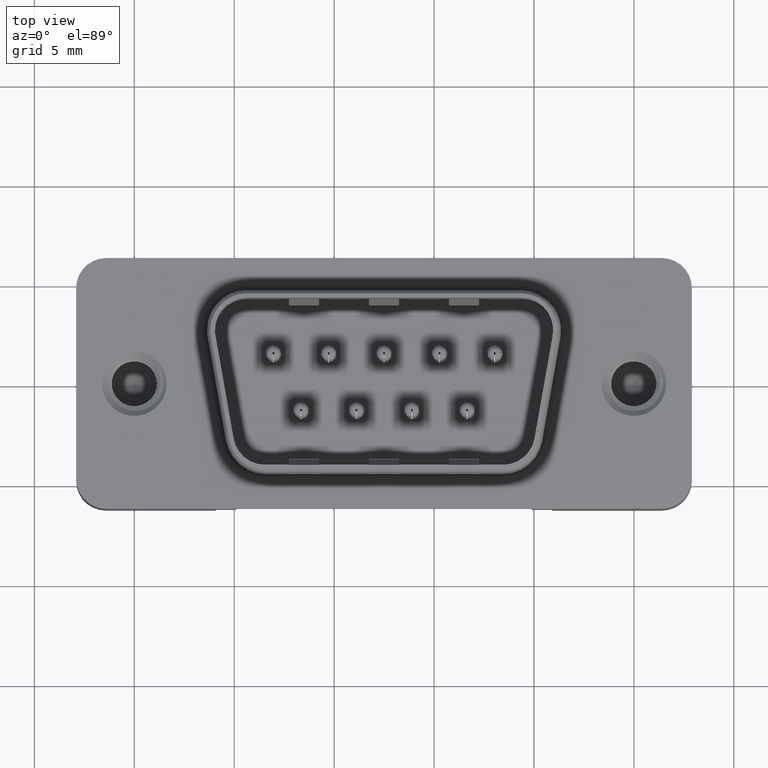
[diagram: clean part render]
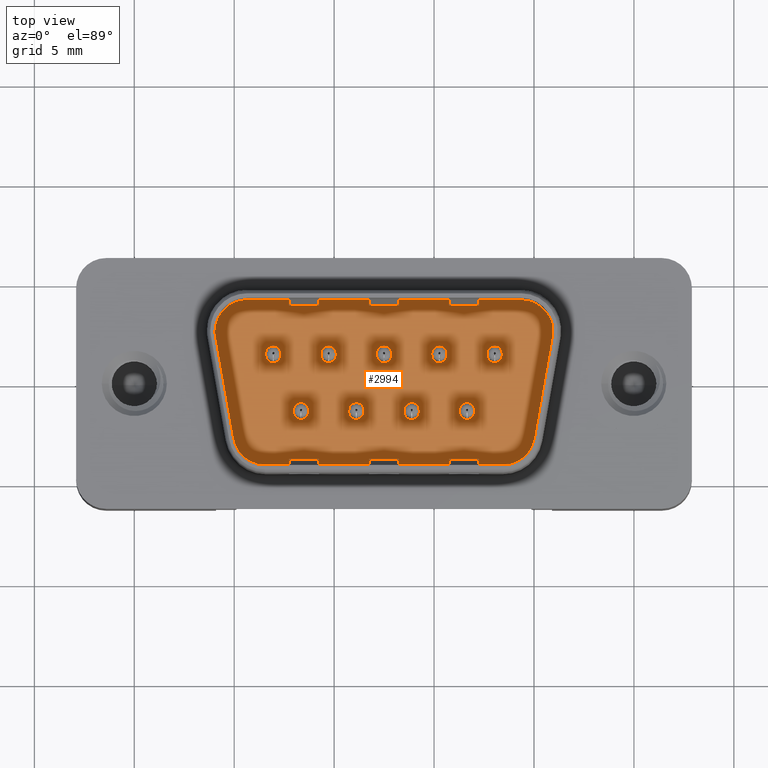
[diagram: same view with one face highlighted and labeled with its STEP entity id]
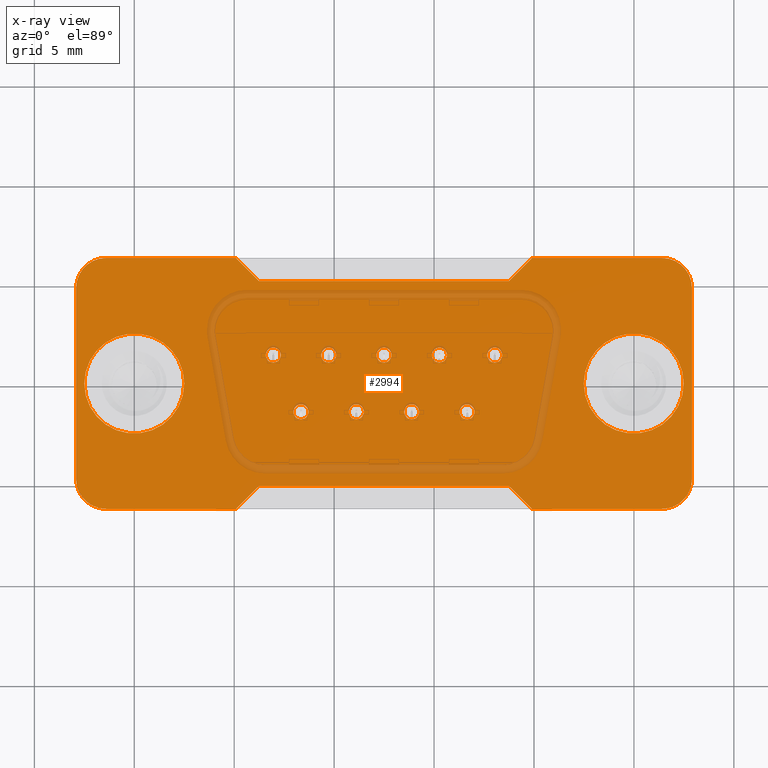
[diagram: x-ray of the same camera — body ghosted, the highlighted face saturated]
A machine part, top view. The second image highlights one B-rep face of the part: STEP entity #2994.
The next image is the same camera in x-ray: the body ghosted, the highlighted face saturated — about 7% of this face is hidden behind the body in this view.
In plain terms, the highlighted planar face has unit normal (0, 0, 1).
Its self-contained STEP definition (entity closure, byte-faithful):
#5 = PLANE ( 'NONE',  #10344 ) ;
#148 = DIRECTION ( 'NONE',  ( 1.000000000000000000, 0.0000000000000000000, -0.0000000000000000000 ) ) ;
#168 = ORIENTED_EDGE ( 'NONE', *, *, #9421, .F. ) ;
#275 = DIRECTION ( 'NONE',  ( -1.000000000000000000, 0.0000000000000000000, 0.0000000000000000000 ) ) ;
#351 = CARTESIAN_POINT ( 'NONE',  ( 10.73499999999999943, -1.419999999999999929, 0.0000000000000000000 ) ) ;
#415 = CIRCLE ( 'NONE', #10362, 0.3750000000000003331 ) ;
#418 = CIRCLE ( 'NONE', #12297, 0.3750000000000003331 ) ;
#434 = EDGE_CURVE ( 'NONE', #13246, #14756, #10138, .T. ) ;
#488 = EDGE_CURVE ( 'NONE', #6777, #7312, #2855, .T. ) ;
#495 = DIRECTION ( 'NONE',  ( 1.000000000000000000, 0.0000000000000000000, 0.0000000000000000000 ) ) ;
#518 = DIRECTION ( 'NONE',  ( 0.0000000000000000000, 0.0000000000000000000, 1.000000000000000000 ) ) ;
#575 = CARTESIAN_POINT ( 'NONE',  ( 6.579999999999999183, 1.419999999999999929, 0.0000000000000000000 ) ) ;
#605 = VERTEX_POINT ( 'NONE', #6147 ) ;
#609 = EDGE_CURVE ( 'NONE', #11572, #8027, #7967, .T. ) ;
#622 = CARTESIAN_POINT ( 'NONE',  ( -2.500000000000000000, 3.061616997868383141E-16, 0.0000000000000000000 ) ) ;
#788 = DIRECTION ( 'NONE',  ( -0.7071067811865515695, 0.7071067811865435759, -0.0000000000000000000 ) ) ;
#828 = ORIENTED_EDGE ( 'NONE', *, *, #13483, .F. ) ;
#856 = EDGE_CURVE ( 'NONE', #605, #14613, #1239, .T. ) ;
#915 = EDGE_CURVE ( 'NONE', #2534, #6081, #11781, .T. ) ;
#933 = AXIS2_PLACEMENT_3D ( 'NONE', #6535, #5460, #1958 ) ;
#1031 = CARTESIAN_POINT ( 'NONE',  ( 27.49000000000000199, 4.590588526603852614E-15, 0.0000000000000000000 ) ) ;
#1075 = CARTESIAN_POINT ( 'NONE',  ( 26.40000000000000213, 4.775000000000002132, 0.0000000000000000000 ) ) ;
#1113 = CARTESIAN_POINT ( 'NONE',  ( 13.88000000000000078, -1.419999999999999929, 0.0000000000000000000 ) ) ;
#1120 = CARTESIAN_POINT ( 'NONE',  ( 0.0000000000000000000, 0.0000000000000000000, 0.0000000000000000000 ) ) ;
#1137 = DIRECTION ( 'NONE',  ( 0.0000000000000000000, 0.0000000000000000000, 1.000000000000000000 ) ) ;
#1239 = LINE ( 'NONE', #8237, #3781 ) ;
#1394 = AXIS2_PLACEMENT_3D ( 'NONE', #10050, #7559, #495 ) ;
#1400 = VERTEX_POINT ( 'NONE', #2495 ) ;
#1464 = ORIENTED_EDGE ( 'NONE', *, *, #609, .T. ) ;
#1487 = VERTEX_POINT ( 'NONE', #10791 ) ;
#1489 = DIRECTION ( 'NONE',  ( -0.7071067811865439090, -0.7071067811865512365, -0.0000000000000000000 ) ) ;
#1508 = VERTEX_POINT ( 'NONE', #6462 ) ;
#1564 = DIRECTION ( 'NONE',  ( 1.000000000000000000, 0.0000000000000000000, 0.0000000000000000000 ) ) ;
#1580 = CARTESIAN_POINT ( 'NONE',  ( 26.40000000000000213, -4.774999999999996803, 0.0000000000000000000 ) ) ;
#1655 = VERTEX_POINT ( 'NONE', #8968 ) ;
#1710 = CARTESIAN_POINT ( 'NONE',  ( 8.339999999999999858, -1.419999999999999929, 0.0000000000000000000 ) ) ;
#1832 = LINE ( 'NONE', #12403, #2419 ) ;
#1865 = CARTESIAN_POINT ( 'NONE',  ( 8.339999999999999858, -1.419999999999999929, 0.0000000000000000000 ) ) ;
#1958 = DIRECTION ( 'NONE',  ( 1.000000000000000000, 0.0000000000000000000, 0.0000000000000000000 ) ) ;
#2010 = EDGE_CURVE ( 'NONE', #8549, #11572, #8726, .T. ) ;
#2014 = ORIENTED_EDGE ( 'NONE', *, *, #7823, .F. ) ;
#2130 = VECTOR ( 'NONE', #7850, 1000.000000000000000 ) ;
#2169 = CIRCLE ( 'NONE', #4600, 0.3750000000000003331 ) ;
#2215 = CARTESIAN_POINT ( 'NONE',  ( 2.500000000000000000, 0.0000000000000000000, 0.0000000000000000000 ) ) ;
#2272 = FACE_BOUND ( 'NONE', #14582, .T. ) ;
#2303 = CARTESIAN_POINT ( 'NONE',  ( 27.90000000000000568, 4.775000000000002132, 0.0000000000000000000 ) ) ;
#2327 = DIRECTION ( 'NONE',  ( 1.000000000000000000, 0.0000000000000000000, 0.0000000000000000000 ) ) ;
#2388 = EDGE_LOOP ( 'NONE', ( #3707, #14169 ) ) ;
#2419 = VECTOR ( 'NONE', #788, 999.9999999999998863 ) ;
#2429 = FACE_OUTER_BOUND ( 'NONE', #8048, .T. ) ;
#2495 = CARTESIAN_POINT ( 'NONE',  ( 9.349999999999999645, 1.419999999999999929, 0.0000000000000000000 ) ) ;
#2498 = CARTESIAN_POINT ( 'NONE',  ( 10.09999999999999964, 1.419999999999999929, 0.0000000000000000000 ) ) ;
#2499 = EDGE_CURVE ( 'NONE', #14756, #13246, #13775, .T. ) ;
#2534 = VERTEX_POINT ( 'NONE', #8228 ) ;
#2567 = VECTOR ( 'NONE', #10987, 1000.000000000000000 ) ;
#2629 = DIRECTION ( 'NONE',  ( 0.0000000000000000000, 0.0000000000000000000, 1.000000000000000000 ) ) ;
#2664 = VECTOR ( 'NONE', #3449, 1000.000000000000000 ) ;
#2696 = DIRECTION ( 'NONE',  ( 1.000000000000000000, 0.0000000000000000000, 0.0000000000000000000 ) ) ;
#2697 = VECTOR ( 'NONE', #7685, 1000.000000000000000 ) ;
#2705 = ORIENTED_EDGE ( 'NONE', *, *, #5954, .F. ) ;
#2740 = ORIENTED_EDGE ( 'NONE', *, *, #915, .T. ) ;
#2742 = DIRECTION ( 'NONE',  ( -1.000000000000000000, -0.0000000000000000000, -0.0000000000000000000 ) ) ;
#2828 = CARTESIAN_POINT ( 'NONE',  ( 5.090000000000007851, 6.275000000000000355, 0.0000000000000000000 ) ) ;
#2855 = CIRCLE ( 'NONE', #11355, 2.500000000000002220 ) ;
#2876 = CIRCLE ( 'NONE', #7989, 1.500000000000000000 ) ;
#2931 = ORIENTED_EDGE ( 'NONE', *, *, #7367, .T. ) ;
#2994 = ADVANCED_FACE ( 'NONE', ( #8065, #9510, #5710, #3566, #10490, #2272, #10332, #11544, #12692, #8219, #9275, #2429 ), #5, .T. ) ;
#3117 = CIRCLE ( 'NONE', #11595, 0.3750000000000003331 ) ;
#3129 = EDGE_LOOP ( 'NONE', ( #11853, #4384 ) ) ;
#3153 = DIRECTION ( 'NONE',  ( 0.0000000000000000000, 0.0000000000000000000, 1.000000000000000000 ) ) ;
#3350 = AXIS2_PLACEMENT_3D ( 'NONE', #13276, #1137, #13137 ) ;
#3425 = DIRECTION ( 'NONE',  ( 1.000000000000000000, 0.0000000000000000000, 0.0000000000000000000 ) ) ;
#3449 = DIRECTION ( 'NONE',  ( 1.000000000000000000, 1.386669445225263827E-16, 0.0000000000000000000 ) ) ;
#3453 = EDGE_CURVE ( 'NONE', #10222, #8610, #8313, .T. ) ;
#3457 = VERTEX_POINT ( 'NONE', #5914 ) ;
#3466 = CARTESIAN_POINT ( 'NONE',  ( 24.98999999999999844, 4.590588526603852614E-15, 0.0000000000000000000 ) ) ;
#3485 = DIRECTION ( 'NONE',  ( 0.0000000000000000000, 0.0000000000000000000, 1.000000000000000000 ) ) ;
#3549 = ORIENTED_EDGE ( 'NONE', *, *, #6547, .T. ) ;
#3566 = FACE_BOUND ( 'NONE', #12460, .T. ) ;
#3599 = AXIS2_PLACEMENT_3D ( 'NONE', #6294, #6206, #1564 ) ;
#3702 = ORIENTED_EDGE ( 'NONE', *, *, #9680, .T. ) ;
#3707 = ORIENTED_EDGE ( 'NONE', *, *, #11617, .F. ) ;
#3741 = ORIENTED_EDGE ( 'NONE', *, *, #5264, .F. ) ;
#3773 = VECTOR ( 'NONE', #4404, 1000.000000000000000 ) ;
#3781 = VECTOR ( 'NONE', #6718, 1000.000000000000000 ) ;
#3787 = CARTESIAN_POINT ( 'NONE',  ( 7.964999999999999858, -1.419999999999999929, 0.0000000000000000000 ) ) ;
#3801 = ORIENTED_EDGE ( 'NONE', *, *, #9308, .F. ) ;
#3852 = CARTESIAN_POINT ( 'NONE',  ( 24.98999999999999844, 4.590588526603852614E-15, 0.0000000000000000000 ) ) ;
#3907 = EDGE_LOOP ( 'NONE', ( #2705, #12449 ) ) ;
#3921 = DIRECTION ( 'NONE',  ( 0.0000000000000000000, 0.0000000000000000000, 1.000000000000000000 ) ) ;
#3933 = EDGE_CURVE ( 'NONE', #12515, #1487, #11425, .T. ) ;
#3982 = VERTEX_POINT ( 'NONE', #9597 ) ;
#3988 = DIRECTION ( 'NONE',  ( 1.000000000000000000, 0.0000000000000000000, 0.0000000000000000000 ) ) ;
#4082 = DIRECTION ( 'NONE',  ( 1.000000000000000000, 0.0000000000000000000, 0.0000000000000000000 ) ) ;
#4089 = VERTEX_POINT ( 'NONE', #8547 ) ;
#4255 = EDGE_CURVE ( 'NONE', #3982, #4796, #9203, .T. ) ;
#4262 = DIRECTION ( 'NONE',  ( 0.0000000000000000000, 0.0000000000000000000, 1.000000000000000000 ) ) ;
#4275 = DIRECTION ( 'NONE',  ( 0.0000000000000000000, 0.0000000000000000000, 1.000000000000000000 ) ) ;
#4384 = ORIENTED_EDGE ( 'NONE', *, *, #3453, .F. ) ;
#4404 = DIRECTION ( 'NONE',  ( -1.000000000000000000, -1.334402673828304958E-16, 0.0000000000000000000 ) ) ;
#4411 = VERTEX_POINT ( 'NONE', #2498 ) ;
#4436 = CARTESIAN_POINT ( 'NONE',  ( 5.090000000000007851, -6.274999999999998579, 0.0000000000000000000 ) ) ;
#4560 = DIRECTION ( 'NONE',  ( 0.0000000000000000000, 0.0000000000000000000, 1.000000000000000000 ) ) ;
#4600 = AXIS2_PLACEMENT_3D ( 'NONE', #14680, #4262, #8899 ) ;
#4649 = DIRECTION ( 'NONE',  ( 1.000000000000000000, 0.0000000000000000000, 0.0000000000000000000 ) ) ;
#4694 = DIRECTION ( 'NONE',  ( 0.0000000000000000000, 0.0000000000000000000, 1.000000000000000000 ) ) ;
#4725 = DIRECTION ( 'NONE',  ( 0.7071067811865433539, 0.7071067811865517916, 0.0000000000000000000 ) ) ;
#4755 = CARTESIAN_POINT ( 'NONE',  ( 9.724999999999999645, 1.419999999999999929, 0.0000000000000000000 ) ) ;
#4774 = DIRECTION ( 'NONE',  ( 0.0000000000000000000, 0.0000000000000000000, 1.000000000000000000 ) ) ;
#4782 = AXIS2_PLACEMENT_3D ( 'NONE', #6940, #7099, #11722 ) ;
#4796 = VERTEX_POINT ( 'NONE', #9260 ) ;
#4808 = AXIS2_PLACEMENT_3D ( 'NONE', #1580, #14363, #5093 ) ;
#5008 = CARTESIAN_POINT ( 'NONE',  ( 22.48999999999999488, 4.896750226390691273E-15, 0.0000000000000000000 ) ) ;
#5047 = AXIS2_PLACEMENT_3D ( 'NONE', #8708, #3921, #3988 ) ;
#5063 = CARTESIAN_POINT ( 'NONE',  ( -1.409999999999992371, -4.775000000000000355, 0.0000000000000000000 ) ) ;
#5071 = DIRECTION ( 'NONE',  ( 0.0000000000000000000, 0.0000000000000000000, 1.000000000000000000 ) ) ;
#5081 = AXIS2_PLACEMENT_3D ( 'NONE', #1710, #4560, #8123 ) ;
#5093 = DIRECTION ( 'NONE',  ( 1.000000000000000000, 0.0000000000000000000, 0.0000000000000000000 ) ) ;
#5264 = EDGE_CURVE ( 'NONE', #7312, #6777, #9623, .T. ) ;
#5409 = EDGE_CURVE ( 'NONE', #4796, #6118, #7496, .T. ) ;
#5430 = CARTESIAN_POINT ( 'NONE',  ( 9.724999999999999645, 1.419999999999999929, 0.0000000000000000000 ) ) ;
#5460 = DIRECTION ( 'NONE',  ( 0.0000000000000000000, 0.0000000000000000000, 1.000000000000000000 ) ) ;
#5496 = DIRECTION ( 'NONE',  ( 0.0000000000000000000, 0.0000000000000000000, 1.000000000000000000 ) ) ;
#5505 = AXIS2_PLACEMENT_3D ( 'NONE', #14202, #4774, #2327 ) ;
#5515 = CARTESIAN_POINT ( 'NONE',  ( 11.10999999999999943, -1.419999999999999929, 0.0000000000000000000 ) ) ;
#5517 = CIRCLE ( 'NONE', #3599, 0.3749999999999951150 ) ;
#5528 = CIRCLE ( 'NONE', #14272, 0.3750000000000003331 ) ;
#5543 = CIRCLE ( 'NONE', #933, 0.3750000000000003331 ) ;
#5546 = LINE ( 'NONE', #8881, #3773 ) ;
#5556 = CIRCLE ( 'NONE', #13516, 0.3750000000000003331 ) ;
#5710 = FACE_BOUND ( 'NONE', #3907, .T. ) ;
#5789 = CIRCLE ( 'NONE', #10155, 0.3750000000000003331 ) ;
#5914 = CARTESIAN_POINT ( 'NONE',  ( 16.27499999999999858, -1.419999999999999929, 0.0000000000000000000 ) ) ;
#5954 = EDGE_CURVE ( 'NONE', #4089, #3457, #11804, .T. ) ;
#6081 = VERTEX_POINT ( 'NONE', #8434 ) ;
#6118 = VERTEX_POINT ( 'NONE', #7589 ) ;
#6147 = CARTESIAN_POINT ( 'NONE',  ( 27.90000000000000568, -4.774999999999995914, 0.0000000000000000000 ) ) ;
#6206 = DIRECTION ( 'NONE',  ( 0.0000000000000000000, 0.0000000000000000000, 1.000000000000000000 ) ) ;
#6214 = DIRECTION ( 'NONE',  ( -1.000000000000000000, 1.334402673828313093E-16, 0.0000000000000000000 ) ) ;
#6270 = CARTESIAN_POINT ( 'NONE',  ( 13.50499999999999901, -1.419999999999999929, 0.0000000000000000000 ) ) ;
#6294 = CARTESIAN_POINT ( 'NONE',  ( 15.26499999999999879, 1.419999999999999929, 0.0000000000000000000 ) ) ;
#6397 = VERTEX_POINT ( 'NONE', #351 ) ;
#6422 = EDGE_LOOP ( 'NONE', ( #14740, #7530 ) ) ;
#6446 = CARTESIAN_POINT ( 'NONE',  ( 5.090000000000007851, 6.275000000000000355, 0.0000000000000000000 ) ) ;
#6462 = CARTESIAN_POINT ( 'NONE',  ( 17.66000000000000014, 1.419999999999999929, 0.0000000000000000000 ) ) ;
#6535 = CARTESIAN_POINT ( 'NONE',  ( 13.88000000000000078, -1.419999999999999929, 0.0000000000000000000 ) ) ;
#6547 = EDGE_CURVE ( 'NONE', #12585, #14925, #10505, .T. ) ;
#6573 = VERTEX_POINT ( 'NONE', #7094 ) ;
#6677 = EDGE_CURVE ( 'NONE', #8027, #9665, #13011, .T. ) ;
#6718 = DIRECTION ( 'NONE',  ( 0.0000000000000000000, 1.000000000000000000, 0.0000000000000000000 ) ) ;
#6777 = VERTEX_POINT ( 'NONE', #1031 ) ;
#6796 = DIRECTION ( 'NONE',  ( 0.0000000000000000000, 0.0000000000000000000, 1.000000000000000000 ) ) ;
#6926 = CARTESIAN_POINT ( 'NONE',  ( 15.26499999999999879, 1.419999999999999929, 0.0000000000000000000 ) ) ;
#6928 = ORIENTED_EDGE ( 'NONE', *, *, #12963, .F. ) ;
#6940 = CARTESIAN_POINT ( 'NONE',  ( 18.03500000000000014, 1.419999999999999929, 0.0000000000000000000 ) ) ;
#7094 = CARTESIAN_POINT ( 'NONE',  ( 8.714999999999999858, -1.419999999999999929, 0.0000000000000000000 ) ) ;
#7099 = DIRECTION ( 'NONE',  ( 0.0000000000000000000, 0.0000000000000000000, 1.000000000000000000 ) ) ;
#7122 = DIRECTION ( 'NONE',  ( 1.000000000000000000, 0.0000000000000000000, 0.0000000000000000000 ) ) ;
#7174 = LINE ( 'NONE', #11802, #12111 ) ;
#7188 = ORIENTED_EDGE ( 'NONE', *, *, #14920, .T. ) ;
#7250 = AXIS2_PLACEMENT_3D ( 'NONE', #1865, #3153, #4082 ) ;
#7260 = DIRECTION ( 'NONE',  ( 0.0000000000000000000, 0.0000000000000000000, 1.000000000000000000 ) ) ;
#7312 = VERTEX_POINT ( 'NONE', #5008 ) ;
#7367 = EDGE_CURVE ( 'NONE', #6118, #605, #9673, .T. ) ;
#7383 = VERTEX_POINT ( 'NONE', #3787 ) ;
#7477 = AXIS2_PLACEMENT_3D ( 'NONE', #12974, #15030, #11676 ) ;
#7496 = LINE ( 'NONE', #12130, #2567 ) ;
#7497 = EDGE_CURVE ( 'NONE', #10426, #11915, #5543, .T. ) ;
#7530 = ORIENTED_EDGE ( 'NONE', *, *, #7631, .F. ) ;
#7559 = DIRECTION ( 'NONE',  ( 0.0000000000000000000, 0.0000000000000000000, 1.000000000000000000 ) ) ;
#7589 = CARTESIAN_POINT ( 'NONE',  ( 26.40000000000000568, -6.274999999999997691, 0.0000000000000000000 ) ) ;
#7626 = ORIENTED_EDGE ( 'NONE', *, *, #6677, .T. ) ;
#7631 = EDGE_CURVE ( 'NONE', #11915, #10426, #415, .T. ) ;
#7640 = CARTESIAN_POINT ( 'NONE',  ( -2.909999999999992593, 4.775000000000000355, 0.0000000000000000000 ) ) ;
#7642 = VERTEX_POINT ( 'NONE', #9031 ) ;
#7672 = ORIENTED_EDGE ( 'NONE', *, *, #14346, .T. ) ;
#7685 = DIRECTION ( 'NONE',  ( 0.7071067811865517916, -0.7071067811865432429, 0.0000000000000000000 ) ) ;
#7735 = CIRCLE ( 'NONE', #3350, 2.500000000000000000 ) ;
#7814 = EDGE_CURVE ( 'NONE', #12404, #12434, #5517, .T. ) ;
#7823 = EDGE_CURVE ( 'NONE', #4411, #1400, #5556, .T. ) ;
#7845 = EDGE_LOOP ( 'NONE', ( #6928, #11431 ) ) ;
#7850 = DIRECTION ( 'NONE',  ( 1.000000000000000000, 2.668805347656626678E-16, -0.0000000000000000000 ) ) ;
#7876 = EDGE_LOOP ( 'NONE', ( #2014, #13809 ) ) ;
#7967 = CIRCLE ( 'NONE', #9899, 1.500000000000000222 ) ;
#7989 = AXIS2_PLACEMENT_3D ( 'NONE', #5063, #7260, #275 ) ;
#8027 = VERTEX_POINT ( 'NONE', #7640 ) ;
#8040 = CARTESIAN_POINT ( 'NONE',  ( 12.86999999999999922, 1.419999999999999929, 0.0000000000000000000 ) ) ;
#8048 = EDGE_LOOP ( 'NONE', ( #8704, #12282, #10707, #2740, #7188, #12487, #1464, #7626, #3702, #12214, #3549, #7672, #9318, #8775, #2931, #14629 ) ) ;
#8065 = FACE_BOUND ( 'NONE', #2388, .T. ) ;
#8123 = DIRECTION ( 'NONE',  ( 1.000000000000000000, 0.0000000000000000000, 0.0000000000000000000 ) ) ;
#8150 = CARTESIAN_POINT ( 'NONE',  ( 5.090000000000007851, -6.274999999999998579, 0.0000000000000000000 ) ) ;
#8202 = EDGE_LOOP ( 'NONE', ( #9983, #3741 ) ) ;
#8219 = FACE_BOUND ( 'NONE', #8202, .T. ) ;
#8228 = CARTESIAN_POINT ( 'NONE',  ( 18.74999999999997513, 5.124999999999999112, 0.0000000000000000000 ) ) ;
#8237 = CARTESIAN_POINT ( 'NONE',  ( 27.90000000000000568, -4.774999999999995914, 0.0000000000000000000 ) ) ;
#8313 = CIRCLE ( 'NONE', #14616, 2.500000000000000000 ) ;
#8384 = EDGE_CURVE ( 'NONE', #1400, #4411, #5528, .T. ) ;
#8419 = EDGE_LOOP ( 'NONE', ( #10358, #9740 ) ) ;
#8434 = CARTESIAN_POINT ( 'NONE',  ( 6.240000000000021529, 5.124999999999999112, 0.0000000000000000000 ) ) ;
#8487 = CARTESIAN_POINT ( 'NONE',  ( -2.909999999999992593, -4.775000000000000355, 0.0000000000000000000 ) ) ;
#8511 = EDGE_CURVE ( 'NONE', #14613, #10345, #13055, .T. ) ;
#8547 = CARTESIAN_POINT ( 'NONE',  ( 17.02499999999999858, -1.419999999999999929, 0.0000000000000000000 ) ) ;
#8549 = VERTEX_POINT ( 'NONE', #2828 ) ;
#8571 = EDGE_CURVE ( 'NONE', #6397, #9801, #8921, .T. ) ;
#8580 = EDGE_CURVE ( 'NONE', #12434, #12404, #12568, .T. ) ;
#8588 = EDGE_CURVE ( 'NONE', #7642, #12585, #11264, .T. ) ;
#8610 = VERTEX_POINT ( 'NONE', #2215 ) ;
#8704 = ORIENTED_EDGE ( 'NONE', *, *, #8511, .T. ) ;
#8708 = CARTESIAN_POINT ( 'NONE',  ( 6.954999999999999183, 1.419999999999999929, 0.0000000000000000000 ) ) ;
#8726 = LINE ( 'NONE', #6446, #11089 ) ;
#8737 = CARTESIAN_POINT ( 'NONE',  ( 14.89000000000000412, 1.419999999999999929, 0.0000000000000000000 ) ) ;
#8775 = ORIENTED_EDGE ( 'NONE', *, *, #5409, .T. ) ;
#8881 = CARTESIAN_POINT ( 'NONE',  ( 26.40000000000000568, 6.275000000000003908, 0.0000000000000000000 ) ) ;
#8899 = DIRECTION ( 'NONE',  ( 1.000000000000000000, 0.0000000000000000000, 0.0000000000000000000 ) ) ;
#8921 = CIRCLE ( 'NONE', #10860, 0.3750000000000003331 ) ;
#8968 = CARTESIAN_POINT ( 'NONE',  ( 18.41000000000000014, 1.419999999999999929, 0.0000000000000000000 ) ) ;
#9031 = CARTESIAN_POINT ( 'NONE',  ( -1.409999999999992149, -6.275000000000000355, 0.0000000000000000000 ) ) ;
#9160 = CARTESIAN_POINT ( 'NONE',  ( 12.49499999999999922, 1.419999999999999929, 0.0000000000000000000 ) ) ;
#9179 = EDGE_CURVE ( 'NONE', #8610, #10222, #7735, .T. ) ;
#9188 = EDGE_LOOP ( 'NONE', ( #9481, #10957 ) ) ;
#9203 = LINE ( 'NONE', #13848, #2697 ) ;
#9246 = AXIS2_PLACEMENT_3D ( 'NONE', #15020, #12663, #10668 ) ;
#9260 = CARTESIAN_POINT ( 'NONE',  ( 19.90000000000001990, -6.274999999999997691, 0.0000000000000000000 ) ) ;
#9275 = FACE_BOUND ( 'NONE', #3129, .T. ) ;
#9308 = EDGE_CURVE ( 'NONE', #6573, #7383, #9684, .T. ) ;
#9318 = ORIENTED_EDGE ( 'NONE', *, *, #4255, .T. ) ;
#9409 = DIRECTION ( 'NONE',  ( 1.000000000000000000, 0.0000000000000000000, 0.0000000000000000000 ) ) ;
#9421 = EDGE_CURVE ( 'NONE', #1487, #12515, #3117, .T. ) ;
#9481 = ORIENTED_EDGE ( 'NONE', *, *, #434, .F. ) ;
#9510 = FACE_BOUND ( 'NONE', #6422, .T. ) ;
#9530 = DIRECTION ( 'NONE',  ( -0.0000000000000000000, -1.000000000000000000, -0.0000000000000000000 ) ) ;
#9597 = CARTESIAN_POINT ( 'NONE',  ( 18.75000000000000711, -5.124999999999999112, 0.0000000000000000000 ) ) ;
#9623 = CIRCLE ( 'NONE', #14716, 2.500000000000002220 ) ;
#9626 = EDGE_CURVE ( 'NONE', #12138, #2534, #7174, .T. ) ;
#9665 = VERTEX_POINT ( 'NONE', #8487 ) ;
#9673 = CIRCLE ( 'NONE', #4808, 1.500000000000001332 ) ;
#9680 = EDGE_CURVE ( 'NONE', #9665, #7642, #2876, .T. ) ;
#9684 = CIRCLE ( 'NONE', #7250, 0.3750000000000003331 ) ;
#9707 = DIRECTION ( 'NONE',  ( 1.000000000000000000, 0.0000000000000000000, 0.0000000000000000000 ) ) ;
#9740 = ORIENTED_EDGE ( 'NONE', *, *, #7814, .F. ) ;
#9801 = VERTEX_POINT ( 'NONE', #11042 ) ;
#9810 = CARTESIAN_POINT ( 'NONE',  ( 26.40000000000000568, 6.275000000000003908, 0.0000000000000000000 ) ) ;
#9893 = CARTESIAN_POINT ( 'NONE',  ( 6.239999999999991331, -5.125000000000000888, 0.0000000000000000000 ) ) ;
#9899 = AXIS2_PLACEMENT_3D ( 'NONE', #10928, #518, #12480 ) ;
#9983 = ORIENTED_EDGE ( 'NONE', *, *, #488, .F. ) ;
#10050 = CARTESIAN_POINT ( 'NONE',  ( 26.40000000000000213, 4.775000000000002132, 0.0000000000000000000 ) ) ;
#10138 = CIRCLE ( 'NONE', #7477, 0.3750000000000003331 ) ;
#10144 = DIRECTION ( 'NONE',  ( 0.0000000000000000000, 0.0000000000000000000, 1.000000000000000000 ) ) ;
#10155 = AXIS2_PLACEMENT_3D ( 'NONE', #13996, #12493, #13651 ) ;
#10222 = VERTEX_POINT ( 'NONE', #622 ) ;
#10304 = CARTESIAN_POINT ( 'NONE',  ( 5.090000000000007851, -6.274999999999998579, 0.0000000000000000000 ) ) ;
#10332 = FACE_BOUND ( 'NONE', #8419, .T. ) ;
#10333 = EDGE_CURVE ( 'NONE', #3457, #4089, #2169, .T. ) ;
#10340 = CARTESIAN_POINT ( 'NONE',  ( 19.89999999999996660, 6.275000000000003020, 0.0000000000000000000 ) ) ;
#10344 = AXIS2_PLACEMENT_3D ( 'NONE', #1075, #3485, #148 ) ;
#10345 = VERTEX_POINT ( 'NONE', #9810 ) ;
#10358 = ORIENTED_EDGE ( 'NONE', *, *, #8580, .F. ) ;
#10362 = AXIS2_PLACEMENT_3D ( 'NONE', #1113, #12817, #13819 ) ;
#10370 = DIRECTION ( 'NONE',  ( 1.000000000000000000, 0.0000000000000000000, 0.0000000000000000000 ) ) ;
#10426 = VERTEX_POINT ( 'NONE', #12398 ) ;
#10490 = FACE_BOUND ( 'NONE', #7876, .T. ) ;
#10505 = LINE ( 'NONE', #8150, #14514 ) ;
#10582 = ORIENTED_EDGE ( 'NONE', *, *, #3933, .F. ) ;
#10668 = DIRECTION ( 'NONE',  ( 1.000000000000000000, 0.0000000000000000000, 0.0000000000000000000 ) ) ;
#10707 = ORIENTED_EDGE ( 'NONE', *, *, #9626, .T. ) ;
#10791 = CARTESIAN_POINT ( 'NONE',  ( 12.11999999999999922, 1.419999999999999929, 0.0000000000000000000 ) ) ;
#10860 = AXIS2_PLACEMENT_3D ( 'NONE', #13559, #6796, #3425 ) ;
#10891 = CARTESIAN_POINT ( 'NONE',  ( 6.240000000000021529, 5.124999999999999112, 0.0000000000000000000 ) ) ;
#10899 = EDGE_CURVE ( 'NONE', #10345, #12138, #5546, .T. ) ;
#10928 = CARTESIAN_POINT ( 'NONE',  ( -1.409999999999992371, 4.775000000000000355, 0.0000000000000000000 ) ) ;
#10957 = ORIENTED_EDGE ( 'NONE', *, *, #2499, .F. ) ;
#10987 = DIRECTION ( 'NONE',  ( 1.000000000000000000, 2.668805347656631116E-16, -0.0000000000000000000 ) ) ;
#11042 = CARTESIAN_POINT ( 'NONE',  ( 11.48500000000000121, -1.419999999999999929, 0.0000000000000000000 ) ) ;
#11083 = CIRCLE ( 'NONE', #4782, 0.3750000000000003331 ) ;
#11089 = VECTOR ( 'NONE', #6214, 1000.000000000000000 ) ;
#11264 = LINE ( 'NONE', #4436, #2130 ) ;
#11355 = AXIS2_PLACEMENT_3D ( 'NONE', #3466, #11910, #7122 ) ;
#11425 = CIRCLE ( 'NONE', #9246, 0.3750000000000003331 ) ;
#11431 = ORIENTED_EDGE ( 'NONE', *, *, #11723, .F. ) ;
#11544 = FACE_BOUND ( 'NONE', #7845, .T. ) ;
#11572 = VERTEX_POINT ( 'NONE', #13648 ) ;
#11582 = AXIS2_PLACEMENT_3D ( 'NONE', #6926, #5496, #4649 ) ;
#11595 = AXIS2_PLACEMENT_3D ( 'NONE', #9160, #13942, #10370 ) ;
#11617 = EDGE_CURVE ( 'NONE', #9801, #6397, #418, .T. ) ;
#11676 = DIRECTION ( 'NONE',  ( 1.000000000000000000, 0.0000000000000000000, 0.0000000000000000000 ) ) ;
#11722 = DIRECTION ( 'NONE',  ( 1.000000000000000000, 0.0000000000000000000, 0.0000000000000000000 ) ) ;
#11723 = EDGE_CURVE ( 'NONE', #1508, #1655, #11083, .T. ) ;
#11781 = LINE ( 'NONE', #10891, #13732 ) ;
#11802 = CARTESIAN_POINT ( 'NONE',  ( 18.74999999999997513, 5.124999999999999112, 0.0000000000000000000 ) ) ;
#11804 = CIRCLE ( 'NONE', #5505, 0.3750000000000003331 ) ;
#11853 = ORIENTED_EDGE ( 'NONE', *, *, #9179, .F. ) ;
#11910 = DIRECTION ( 'NONE',  ( 0.0000000000000000000, 0.0000000000000000000, 1.000000000000000000 ) ) ;
#11915 = VERTEX_POINT ( 'NONE', #6270 ) ;
#12031 = DIRECTION ( 'NONE',  ( 1.000000000000000000, 0.0000000000000000000, 0.0000000000000000000 ) ) ;
#12111 = VECTOR ( 'NONE', #1489, 999.9999999999998863 ) ;
#12130 = CARTESIAN_POINT ( 'NONE',  ( 26.40000000000000568, -6.274999999999995914, 0.0000000000000000000 ) ) ;
#12138 = VERTEX_POINT ( 'NONE', #10340 ) ;
#12214 = ORIENTED_EDGE ( 'NONE', *, *, #8588, .T. ) ;
#12282 = ORIENTED_EDGE ( 'NONE', *, *, #10899, .T. ) ;
#12297 = AXIS2_PLACEMENT_3D ( 'NONE', #5515, #10144, #14867 ) ;
#12398 = CARTESIAN_POINT ( 'NONE',  ( 14.25500000000000078, -1.419999999999999929, 0.0000000000000000000 ) ) ;
#12403 = CARTESIAN_POINT ( 'NONE',  ( 5.090000000000007851, 6.275000000000000355, 0.0000000000000000000 ) ) ;
#12404 = VERTEX_POINT ( 'NONE', #8737 ) ;
#12434 = VERTEX_POINT ( 'NONE', #13372 ) ;
#12449 = ORIENTED_EDGE ( 'NONE', *, *, #10333, .F. ) ;
#12460 = EDGE_LOOP ( 'NONE', ( #3801, #828 ) ) ;
#12480 = DIRECTION ( 'NONE',  ( 1.000000000000000000, 0.0000000000000000000, 0.0000000000000000000 ) ) ;
#12487 = ORIENTED_EDGE ( 'NONE', *, *, #2010, .T. ) ;
#12493 = DIRECTION ( 'NONE',  ( 0.0000000000000000000, 0.0000000000000000000, 1.000000000000000000 ) ) ;
#12515 = VERTEX_POINT ( 'NONE', #8040 ) ;
#12568 = CIRCLE ( 'NONE', #11582, 0.3749999999999951150 ) ;
#12585 = VERTEX_POINT ( 'NONE', #10304 ) ;
#12663 = DIRECTION ( 'NONE',  ( 0.0000000000000000000, 0.0000000000000000000, 1.000000000000000000 ) ) ;
#12692 = FACE_BOUND ( 'NONE', #9188, .T. ) ;
#12720 = LINE ( 'NONE', #13880, #2664 ) ;
#12811 = VECTOR ( 'NONE', #9530, 1000.000000000000000 ) ;
#12817 = DIRECTION ( 'NONE',  ( 0.0000000000000000000, 0.0000000000000000000, 1.000000000000000000 ) ) ;
#12963 = EDGE_CURVE ( 'NONE', #1655, #1508, #5789, .T. ) ;
#12974 = CARTESIAN_POINT ( 'NONE',  ( 6.954999999999999183, 1.419999999999999929, 0.0000000000000000000 ) ) ;
#13011 = LINE ( 'NONE', #13928, #12811 ) ;
#13055 = CIRCLE ( 'NONE', #1394, 1.500000000000001332 ) ;
#13080 = CIRCLE ( 'NONE', #5081, 0.3750000000000003331 ) ;
#13137 = DIRECTION ( 'NONE',  ( 1.000000000000000000, 0.0000000000000000000, 0.0000000000000000000 ) ) ;
#13246 = VERTEX_POINT ( 'NONE', #13620 ) ;
#13276 = CARTESIAN_POINT ( 'NONE',  ( 0.0000000000000000000, 0.0000000000000000000, 0.0000000000000000000 ) ) ;
#13372 = CARTESIAN_POINT ( 'NONE',  ( 15.63999999999999346, 1.419999999999999929, 0.0000000000000000000 ) ) ;
#13483 = EDGE_CURVE ( 'NONE', #7383, #6573, #13080, .T. ) ;
#13516 = AXIS2_PLACEMENT_3D ( 'NONE', #4755, #2629, #9707 ) ;
#13559 = CARTESIAN_POINT ( 'NONE',  ( 11.10999999999999943, -1.419999999999999929, 0.0000000000000000000 ) ) ;
#13620 = CARTESIAN_POINT ( 'NONE',  ( 7.330000000000000071, 1.419999999999999929, 0.0000000000000000000 ) ) ;
#13648 = CARTESIAN_POINT ( 'NONE',  ( -1.409999999999992593, 6.275000000000001243, 0.0000000000000000000 ) ) ;
#13651 = DIRECTION ( 'NONE',  ( 1.000000000000000000, 0.0000000000000000000, 0.0000000000000000000 ) ) ;
#13732 = VECTOR ( 'NONE', #2742, 1000.000000000000000 ) ;
#13775 = CIRCLE ( 'NONE', #5047, 0.3750000000000003331 ) ;
#13809 = ORIENTED_EDGE ( 'NONE', *, *, #8384, .F. ) ;
#13819 = DIRECTION ( 'NONE',  ( 1.000000000000000000, 0.0000000000000000000, 0.0000000000000000000 ) ) ;
#13848 = CARTESIAN_POINT ( 'NONE',  ( 18.75000000000000711, -5.124999999999999112, 0.0000000000000000000 ) ) ;
#13880 = CARTESIAN_POINT ( 'NONE',  ( 6.239999999999991331, -5.125000000000000888, 0.0000000000000000000 ) ) ;
#13928 = CARTESIAN_POINT ( 'NONE',  ( -2.909999999999992593, -4.775000000000000355, 0.0000000000000000000 ) ) ;
#13942 = DIRECTION ( 'NONE',  ( 0.0000000000000000000, 0.0000000000000000000, 1.000000000000000000 ) ) ;
#13996 = CARTESIAN_POINT ( 'NONE',  ( 18.03500000000000014, 1.419999999999999929, 0.0000000000000000000 ) ) ;
#14169 = ORIENTED_EDGE ( 'NONE', *, *, #8571, .F. ) ;
#14202 = CARTESIAN_POINT ( 'NONE',  ( 16.64999999999999858, -1.419999999999999929, 0.0000000000000000000 ) ) ;
#14272 = AXIS2_PLACEMENT_3D ( 'NONE', #5430, #4275, #12031 ) ;
#14346 = EDGE_CURVE ( 'NONE', #14925, #3982, #12720, .T. ) ;
#14363 = DIRECTION ( 'NONE',  ( 0.0000000000000000000, 0.0000000000000000000, 1.000000000000000000 ) ) ;
#14514 = VECTOR ( 'NONE', #4725, 1000.000000000000000 ) ;
#14582 = EDGE_LOOP ( 'NONE', ( #10582, #168 ) ) ;
#14613 = VERTEX_POINT ( 'NONE', #2303 ) ;
#14616 = AXIS2_PLACEMENT_3D ( 'NONE', #1120, #4694, #9409 ) ;
#14629 = ORIENTED_EDGE ( 'NONE', *, *, #856, .T. ) ;
#14680 = CARTESIAN_POINT ( 'NONE',  ( 16.64999999999999858, -1.419999999999999929, 0.0000000000000000000 ) ) ;
#14716 = AXIS2_PLACEMENT_3D ( 'NONE', #3852, #5071, #2696 ) ;
#14740 = ORIENTED_EDGE ( 'NONE', *, *, #7497, .F. ) ;
#14756 = VERTEX_POINT ( 'NONE', #575 ) ;
#14867 = DIRECTION ( 'NONE',  ( 1.000000000000000000, 0.0000000000000000000, 0.0000000000000000000 ) ) ;
#14920 = EDGE_CURVE ( 'NONE', #6081, #8549, #1832, .T. ) ;
#14925 = VERTEX_POINT ( 'NONE', #9893 ) ;
#15020 = CARTESIAN_POINT ( 'NONE',  ( 12.49499999999999922, 1.419999999999999929, 0.0000000000000000000 ) ) ;
#15030 = DIRECTION ( 'NONE',  ( 0.0000000000000000000, 0.0000000000000000000, 1.000000000000000000 ) ) ;